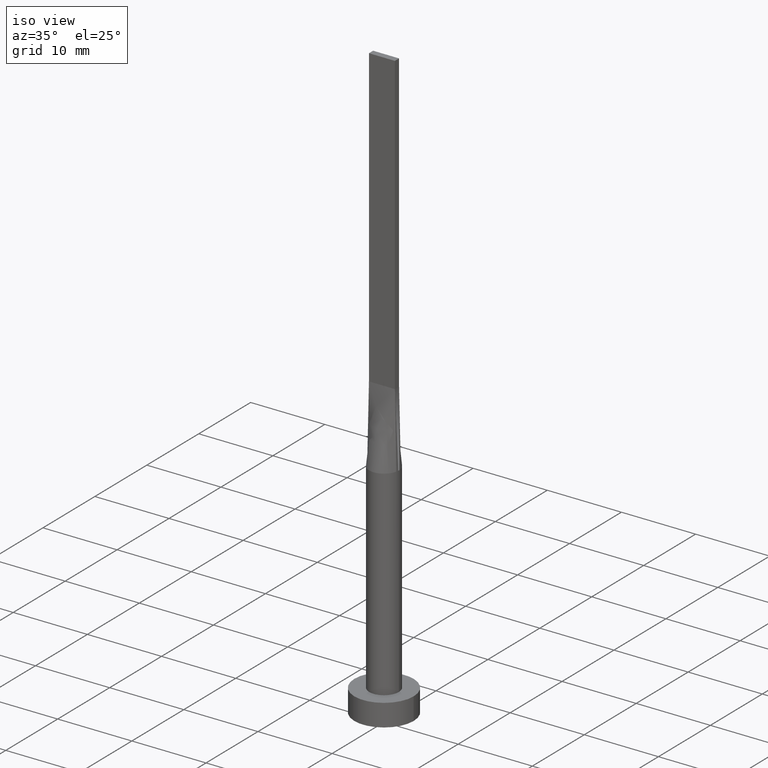
[diagram: clean part render]
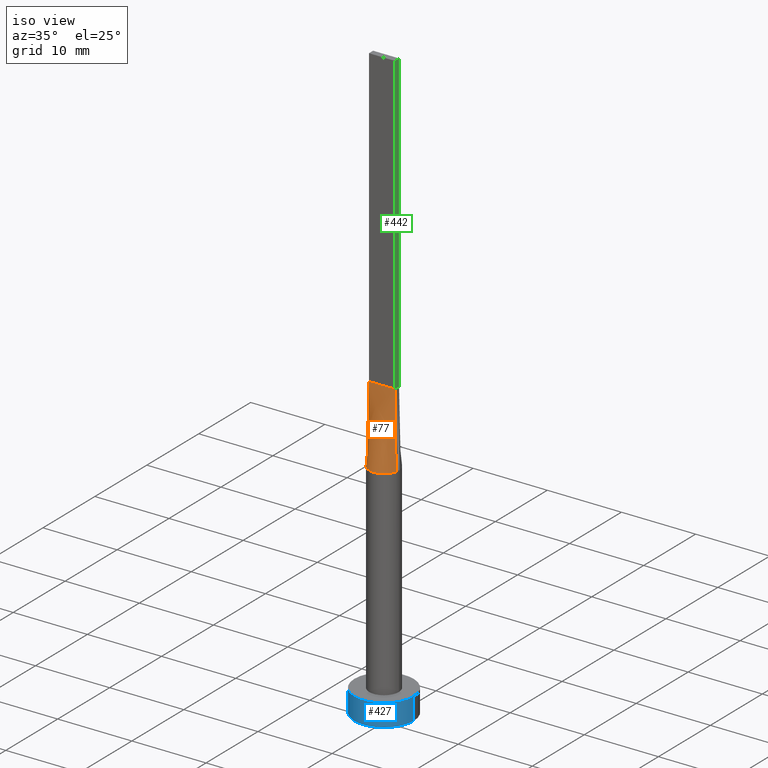
[diagram: same view with three faces highlighted in distinct colors, each labeled with its STEP entity id]
A machine part, iso view with three faces highlighted in distinct colors.
Their STEP definitions:

[orange] entity #77 — the highlighted face is a freeform B-spline surface patch.
#7 = AXIS2_PLACEMENT_3D ( 'NONE', #482, #574, #221 ) ;
#17 = VERTEX_POINT ( 'NONE', #254 ) ;
#22 = FACE_OUTER_BOUND ( 'NONE', #33, .T. ) ;
#33 = EDGE_LOOP ( 'NONE', ( #418, #218, #569, #448 ) ) ;
#39 = VERTEX_POINT ( 'NONE', #339 ) ;
#43 = CARTESIAN_POINT ( 'NONE',  ( -0.1458333333333345638, -0.3999999999999997446, 40.00000000000000000 ) ) ;
#52 = CARTESIAN_POINT ( 'NONE',  ( -1.166666666666667185, -0.3999999999999996891, 39.99999999999999289 ) ) ;
#70 = CARTESIAN_POINT ( 'NONE',  ( 1.669156890509896574, -1.119033439449083733, 30.00000000000000000 ) ) ;
#75 = CARTESIAN_POINT ( 'NONE',  ( 0.5307032259479425029, -1.945168061822314831, 30.00000000000000355 ) ) ;
#77 = ADVANCED_FACE ( 'NONE', ( #22 ), #261, .T. ) ;
#89 = CARTESIAN_POINT ( 'NONE',  ( -0.5307032259479425029, -1.945168061822315275, 30.00000000000000355 ) ) ;
#95 = CARTESIAN_POINT ( 'NONE',  ( -1.913513237607142425, -0.6040411209768705714, 30.00000000000000000 ) ) ;
#117 = CARTESIAN_POINT ( 'NONE',  ( 0.1458333333333321213, -0.3999999999999997446, 39.99999999999999289 ) ) ;
#146 = CARTESIAN_POINT ( 'NONE',  ( -1.002818635501955047, -1.749193953526917866, 30.00000000000000355 ) ) ;
#154 = CARTESIAN_POINT ( 'NONE',  ( 1.020833333333332371, -0.3999999999999997446, 39.99999999999999289 ) ) ;
#159 = CARTESIAN_POINT ( 'NONE',  ( -1.949717013143734690, -0.4456496030042821355, 30.00000000000000000 ) ) ;
#178 = CARTESIAN_POINT ( 'NONE',  ( -0.2657394870669760878, -2.000000000000000000, 30.00000000000000355 ) ) ;
#188 = CARTESIAN_POINT ( 'NONE',  ( -1.604166666666666963, -0.3999999999999996891, 39.99999999999999289 ) ) ;
#209 = CARTESIAN_POINT ( 'NONE',  ( 1.166666666666665853, -0.3999999999999997446, 39.99999999999999289 ) ) ;
#218 = ORIENTED_EDGE ( 'NONE', *, *, #400, .T. ) ;
#221 = DIRECTION ( 'NONE',  ( 1.000000000000000000, 0.000000000000000000, 0.000000000000000000 ) ) ;
#232 = CARTESIAN_POINT ( 'NONE',  ( -0.2916666666666679619, -0.3999999999999997446, 39.99999999999999289 ) ) ;
#235 = CARTESIAN_POINT ( 'NONE',  ( -1.020833333333334147, -0.3999999999999997446, 39.99999999999999289 ) ) ;
#237 = CARTESIAN_POINT ( 'NONE',  ( 1.849858506571867345, -0.4228248015021406347, 35.00000000000000000 ) ) ;
#254 = CARTESIAN_POINT ( 'NONE',  ( -1.750000000000000000, -0.3999999999999996891, 40.00000000000000000 ) ) ;
#255 = CARTESIAN_POINT ( 'NONE',  ( 1.750000000000000000, -0.3999999999999996891, 40.00000000000000000 ) ) ;
#261 = B_SPLINE_SURFACE_WITH_KNOTS ( 'NONE', 3, 1, ( 
 ( #159, #337 ),
 ( #95, #188 ),
 ( #274, #538 ),
 ( #446, #52 ),
 ( #542, #235 ),
 ( #515, #462 ),
 ( #146, #489 ),
 ( #89, #232 ),
 ( #178, #43 ),
 ( #348, #117 ),
 ( #75, #440 ),
 ( #487, #510 ),
 ( #516, #471 ),
 ( #424, #154 ),
 ( #70, #209 ),
 ( #377, #557 ),
 ( #551, #287 ),
 ( #296, #255 ) ),
 .UNSPECIFIED., .F., .F., .F.,
 ( 4, 2, 2, 2, 2, 2, 2, 2, 4 ),
 ( 2, 2 ),
 ( 0.000000000000000000, 0.1250000000000000000, 0.2500000000000000000, 0.3750000000000000000, 0.5000000000000000000, 0.6250000000000000000, 0.7500000000000000000, 0.8750000000000000000, 1.000000000000000000 ),
 ( 0.000000000000000000, 1.000000000000000000 ),
 .UNSPECIFIED. ) ;
#271 = DIRECTION ( 'NONE',  ( -0.01996751149463110026, -0.004564002627344275649, -0.9997902121768992290 ) ) ;
#274 = CARTESIAN_POINT ( 'NONE',  ( -1.854458107241759190, -0.7741483657718508660, 30.00000000000000355 ) ) ;
#275 = CARTESIAN_POINT ( 'NONE',  ( -1.849858506571867345, -0.4228248015021409678, 35.00000000000000000 ) ) ;
#287 = CARTESIAN_POINT ( 'NONE',  ( 1.604166666666666519, -0.3999999999999997446, 39.99999999999999289 ) ) ;
#289 = CARTESIAN_POINT ( 'NONE',  ( 1.949907982895221048, -0.4456935569447296186, 30.00000000000000000 ) ) ;
#296 = CARTESIAN_POINT ( 'NONE',  ( 1.949717013143734690, -0.4456496030042815248, 30.00000000000000000 ) ) ;
#307 = EDGE_CURVE ( 'NONE', #333, #498, #543, .T. ) ;
#317 = DIRECTION ( 'NONE',  ( 1.000000000000000000, 0.000000000000000000, 0.000000000000000000 ) ) ;
#320 = LINE ( 'NONE', #275, #372 ) ;
#333 = VERTEX_POINT ( 'NONE', #529 ) ;
#337 = CARTESIAN_POINT ( 'NONE',  ( -1.750000000000000000, -0.3999999999999996891, 40.00000000000000000 ) ) ;
#339 = CARTESIAN_POINT ( 'NONE',  ( 1.750000000000000000, -0.3999999999999996891, 40.00000000000000000 ) ) ;
#348 = CARTESIAN_POINT ( 'NONE',  ( 0.2657394870669759768, -2.000000000000000444, 29.99999999999999645 ) ) ;
#354 = CARTESIAN_POINT ( 'NONE',  ( -1.750000000000000000, -0.3999999999999996891, 40.00000000000000000 ) ) ;
#362 = LINE ( 'NONE', #237, #382 ) ;
#372 = VECTOR ( 'NONE', #271, 1000.000000000000114 ) ;
#377 = CARTESIAN_POINT ( 'NONE',  ( 1.854458107241758746, -0.7741483657718503109, 30.00000000000000000 ) ) ;
#382 = VECTOR ( 'NONE', #395, 1000.000000000000114 ) ;
#385 = EDGE_CURVE ( 'NONE', #17, #39, #497, .T. ) ;
#395 = DIRECTION ( 'NONE',  ( -0.01996751149463110026, 0.004564002627344216668, 0.9997902121768992290 ) ) ;
#400 = EDGE_CURVE ( 'NONE', #498, #39, #362, .T. ) ;
#418 = ORIENTED_EDGE ( 'NONE', *, *, #307, .T. ) ;
#424 = CARTESIAN_POINT ( 'NONE',  ( 1.542259513637949109, -1.293837904363074331, 30.00000000000000000 ) ) ;
#440 = CARTESIAN_POINT ( 'NONE',  ( 0.2916666666666654639, -0.3999999999999997446, 39.99999999999999289 ) ) ;
#446 = CARTESIAN_POINT ( 'NONE',  ( -1.669156890509896796, -1.119033439449083733, 30.00000000000000000 ) ) ;
#448 = ORIENTED_EDGE ( 'NONE', *, *, #450, .T. ) ;
#450 = EDGE_CURVE ( 'NONE', #17, #333, #320, .T. ) ;
#462 = CARTESIAN_POINT ( 'NONE',  ( -0.7291666666666676289, -0.3999999999999997446, 39.99999999999999289 ) ) ;
#471 = CARTESIAN_POINT ( 'NONE',  ( 0.7291666666666656305, -0.3999999999999997446, 39.99999999999999289 ) ) ;
#477 = VECTOR ( 'NONE', #317, 1000.000000000000000 ) ;
#482 = CARTESIAN_POINT ( 'NONE',  ( 0.000000000000000000, 0.000000000000000000, 30.00000000000000000 ) ) ;
#487 = CARTESIAN_POINT ( 'NONE',  ( 1.002818635501955047, -1.749193953526917866, 30.00000000000001066 ) ) ;
#489 = CARTESIAN_POINT ( 'NONE',  ( -0.5833333333333344806, -0.3999999999999997446, 39.99999999999999289 ) ) ;
#497 = LINE ( 'NONE', #354, #477 ) ;
#498 = VERTEX_POINT ( 'NONE', #289 ) ;
#510 = CARTESIAN_POINT ( 'NONE',  ( 0.5833333333333321491, -0.3999999999999997446, 39.99999999999999289 ) ) ;
#515 = CARTESIAN_POINT ( 'NONE',  ( -1.209404336647714739, -1.609323485403446607, 30.00000000000000000 ) ) ;
#516 = CARTESIAN_POINT ( 'NONE',  ( 1.209404336647714517, -1.609323485403446385, 30.00000000000000000 ) ) ;
#529 = CARTESIAN_POINT ( 'NONE',  ( -1.949888833174281633, -0.4456892479726881628, 30.00000000000000000 ) ) ;
#538 = CARTESIAN_POINT ( 'NONE',  ( -1.458333333333333703, -0.3999999999999996891, 39.99999999999999289 ) ) ;
#542 = CARTESIAN_POINT ( 'NONE',  ( -1.542259513637948887, -1.293837904363074331, 30.00000000000000000 ) ) ;
#543 = CIRCLE ( 'NONE', #7, 2.000000000000000000 ) ;
#551 = CARTESIAN_POINT ( 'NONE',  ( 1.913513237607143314, -0.6040411209768704603, 30.00000000000000355 ) ) ;
#557 = CARTESIAN_POINT ( 'NONE',  ( 1.458333333333333037, -0.3999999999999997446, 39.99999999999999289 ) ) ;
#569 = ORIENTED_EDGE ( 'NONE', *, *, #385, .F. ) ;
#574 = DIRECTION ( 'NONE',  ( 0.000000000000000000, 0.000000000000000000, 1.000000000000000000 ) ) ;

[blue] entity #427 — the highlighted cylindrical surface (edge-blend (fillet) strip) has radius 4 mm, axis along (-0, -0, -1).
#3 = VERTEX_POINT ( 'NONE', #478 ) ;
#14 = DIRECTION ( 'NONE',  ( 1.000000000000000000, 0.000000000000000000, 0.000000000000000000 ) ) ;
#18 = CARTESIAN_POINT ( 'NONE',  ( 0.000000000000000000, 0.000000000000000000, 0.000000000000000000 ) ) ;
#40 = CARTESIAN_POINT ( 'NONE',  ( 4.000000000000000000, 4.898587196589412829E-16, 3.000000000000000000 ) ) ;
#41 = EDGE_CURVE ( 'NONE', #3, #222, #191, .T. ) ;
#44 = ORIENTED_EDGE ( 'NONE', *, *, #540, .T. ) ;
#48 = VECTOR ( 'NONE', #309, 1000.000000000000000 ) ;
#49 = DIRECTION ( 'NONE',  ( -0.000000000000000000, -0.000000000000000000, -1.000000000000000000 ) ) ;
#53 = CARTESIAN_POINT ( 'NONE',  ( -4.000000000000000000, 0.000000000000000000, 3.000000000000000000 ) ) ;
#86 = FACE_OUTER_BOUND ( 'NONE', #378, .T. ) ;
#91 = DIRECTION ( 'NONE',  ( -0.000000000000000000, -0.000000000000000000, -1.000000000000000000 ) ) ;
#102 = CARTESIAN_POINT ( 'NONE',  ( 0.000000000000000000, 0.000000000000000000, 3.000000000000000000 ) ) ;
#140 = AXIS2_PLACEMENT_3D ( 'NONE', #189, #49, #396 ) ;
#157 = ORIENTED_EDGE ( 'NONE', *, *, #41, .F. ) ;
#175 = ORIENTED_EDGE ( 'NONE', *, *, #391, .T. ) ;
#176 = VECTOR ( 'NONE', #91, 1000.000000000000000 ) ;
#189 = CARTESIAN_POINT ( 'NONE',  ( 0.000000000000000000, 0.000000000000000000, 3.000000000000000000 ) ) ;
#191 = CIRCLE ( 'NONE', #380, 4.000000000000000000 ) ;
#192 = CARTESIAN_POINT ( 'NONE',  ( 4.000000000000000000, 4.898587196589412829E-16, 0.000000000000000000 ) ) ;
#194 = ORIENTED_EDGE ( 'NONE', *, *, #572, .F. ) ;
#200 = CARTESIAN_POINT ( 'NONE',  ( 4.000000000000000000, 4.898587196589412829E-16, 3.000000000000000000 ) ) ;
#206 = CARTESIAN_POINT ( 'NONE',  ( -4.000000000000000000, 0.000000000000000000, 0.000000000000000000 ) ) ;
#222 = VERTEX_POINT ( 'NONE', #40 ) ;
#226 = CYLINDRICAL_SURFACE ( 'NONE', #140, 4.000000000000000000 ) ;
#240 = CIRCLE ( 'NONE', #568, 4.000000000000000000 ) ;
#247 = DIRECTION ( 'NONE',  ( 0.000000000000000000, 0.000000000000000000, 1.000000000000000000 ) ) ;
#284 = DIRECTION ( 'NONE',  ( 0.000000000000000000, 0.000000000000000000, 1.000000000000000000 ) ) ;
#309 = DIRECTION ( 'NONE',  ( -0.000000000000000000, -0.000000000000000000, -1.000000000000000000 ) ) ;
#325 = LINE ( 'NONE', #200, #176 ) ;
#355 = LINE ( 'NONE', #53, #48 ) ;
#378 = EDGE_LOOP ( 'NONE', ( #194, #157, #175, #44 ) ) ;
#380 = AXIS2_PLACEMENT_3D ( 'NONE', #102, #284, #14 ) ;
#384 = VERTEX_POINT ( 'NONE', #192 ) ;
#391 = EDGE_CURVE ( 'NONE', #3, #490, #355, .T. ) ;
#396 = DIRECTION ( 'NONE',  ( -1.000000000000000000, 0.000000000000000000, 0.000000000000000000 ) ) ;
#427 = ADVANCED_FACE ( 'NONE', ( #86 ), #226, .T. ) ;
#478 = CARTESIAN_POINT ( 'NONE',  ( -4.000000000000000000, 0.000000000000000000, 3.000000000000000000 ) ) ;
#490 = VERTEX_POINT ( 'NONE', #206 ) ;
#540 = EDGE_CURVE ( 'NONE', #490, #384, #240, .T. ) ;
#560 = DIRECTION ( 'NONE',  ( 1.000000000000000000, 0.000000000000000000, 0.000000000000000000 ) ) ;
#568 = AXIS2_PLACEMENT_3D ( 'NONE', #18, #247, #560 ) ;
#572 = EDGE_CURVE ( 'NONE', #222, #384, #325, .T. ) ;

[green] entity #442 — the highlighted planar face has unit normal (-1, -0, 0).
#1 = EDGE_CURVE ( 'NONE', #233, #190, #115, .T. ) ;
#23 = DIRECTION ( 'NONE',  ( -0.000000000000000000, -0.000000000000000000, -1.000000000000000000 ) ) ;
#29 = VECTOR ( 'NONE', #430, 1000.000000000000000 ) ;
#36 = EDGE_CURVE ( 'NONE', #190, #455, #249, .T. ) ;
#38 = LINE ( 'NONE', #571, #579 ) ;
#39 = VERTEX_POINT ( 'NONE', #339 ) ;
#51 = EDGE_CURVE ( 'NONE', #233, #39, #201, .T. ) ;
#85 = DIRECTION ( 'NONE',  ( -2.710505431213761085E-16, 1.000000000000000000, -0.000000000000000000 ) ) ;
#88 = DIRECTION ( 'NONE',  ( -1.000000000000000000, -2.710505431213761085E-16, 0.000000000000000000 ) ) ;
#115 = LINE ( 'NONE', #566, #29 ) ;
#134 = ORIENTED_EDGE ( 'NONE', *, *, #1, .F. ) ;
#145 = DIRECTION ( 'NONE',  ( 2.710505431213761085E-16, -1.000000000000000000, 0.000000000000000000 ) ) ;
#149 = CARTESIAN_POINT ( 'NONE',  ( 1.749999999999999778, 0.4000000000000003553, 80.00000000000000000 ) ) ;
#152 = DIRECTION ( 'NONE',  ( -0.000000000000000000, -0.000000000000000000, -1.000000000000000000 ) ) ;
#160 = CARTESIAN_POINT ( 'NONE',  ( 1.749999999999999778, 0.4000000000000003553, 80.00000000000000000 ) ) ;
#171 = ORIENTED_EDGE ( 'NONE', *, *, #51, .T. ) ;
#190 = VERTEX_POINT ( 'NONE', #149 ) ;
#201 = LINE ( 'NONE', #554, #228 ) ;
#219 = CARTESIAN_POINT ( 'NONE',  ( 1.750000000000000000, -0.3999999999999996891, 80.00000000000000000 ) ) ;
#228 = VECTOR ( 'NONE', #152, 1000.000000000000000 ) ;
#233 = VERTEX_POINT ( 'NONE', #219 ) ;
#249 = LINE ( 'NONE', #160, #390 ) ;
#280 = CARTESIAN_POINT ( 'NONE',  ( 1.749999999999999778, 0.4000000000000003553, 40.00000000000000000 ) ) ;
#281 = ORIENTED_EDGE ( 'NONE', *, *, #36, .F. ) ;
#313 = FACE_OUTER_BOUND ( 'NONE', #388, .T. ) ;
#318 = ORIENTED_EDGE ( 'NONE', *, *, #336, .T. ) ;
#336 = EDGE_CURVE ( 'NONE', #39, #455, #38, .T. ) ;
#339 = CARTESIAN_POINT ( 'NONE',  ( 1.750000000000000000, -0.3999999999999996891, 40.00000000000000000 ) ) ;
#388 = EDGE_LOOP ( 'NONE', ( #318, #281, #134, #171 ) ) ;
#390 = VECTOR ( 'NONE', #23, 1000.000000000000000 ) ;
#430 = DIRECTION ( 'NONE',  ( -2.710505431213761085E-16, 1.000000000000000000, 0.000000000000000000 ) ) ;
#442 = ADVANCED_FACE ( 'NONE', ( #313 ), #547, .F. ) ;
#454 = AXIS2_PLACEMENT_3D ( 'NONE', #488, #88, #145 ) ;
#455 = VERTEX_POINT ( 'NONE', #280 ) ;
#488 = CARTESIAN_POINT ( 'NONE',  ( 1.750000000000000000, -0.3999999999999996891, 80.00000000000000000 ) ) ;
#547 = PLANE ( 'NONE',  #454 ) ;
#554 = CARTESIAN_POINT ( 'NONE',  ( 1.750000000000000000, -0.3999999999999996891, 80.00000000000000000 ) ) ;
#566 = CARTESIAN_POINT ( 'NONE',  ( 1.750000000000000000, -0.3999999999999996891, 80.00000000000000000 ) ) ;
#571 = CARTESIAN_POINT ( 'NONE',  ( 1.749999999999999778, 0.4000000000000003553, 40.00000000000000000 ) ) ;
#579 = VECTOR ( 'NONE', #85, 1000.000000000000000 ) ;